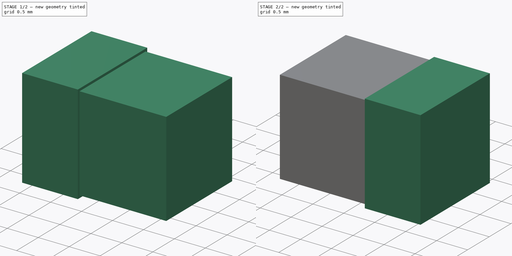
[diagram: build sequence overview — one tinted view per stage of 2, left to right]
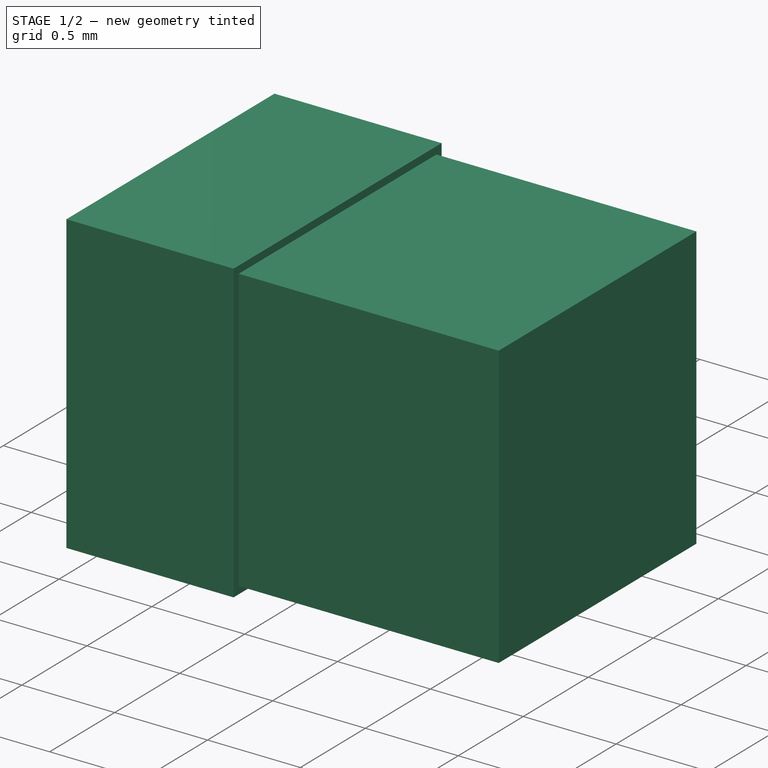
[diagram: stage 1 of 2 — iso view after this stage's code; geometry added in this stage tinted green]
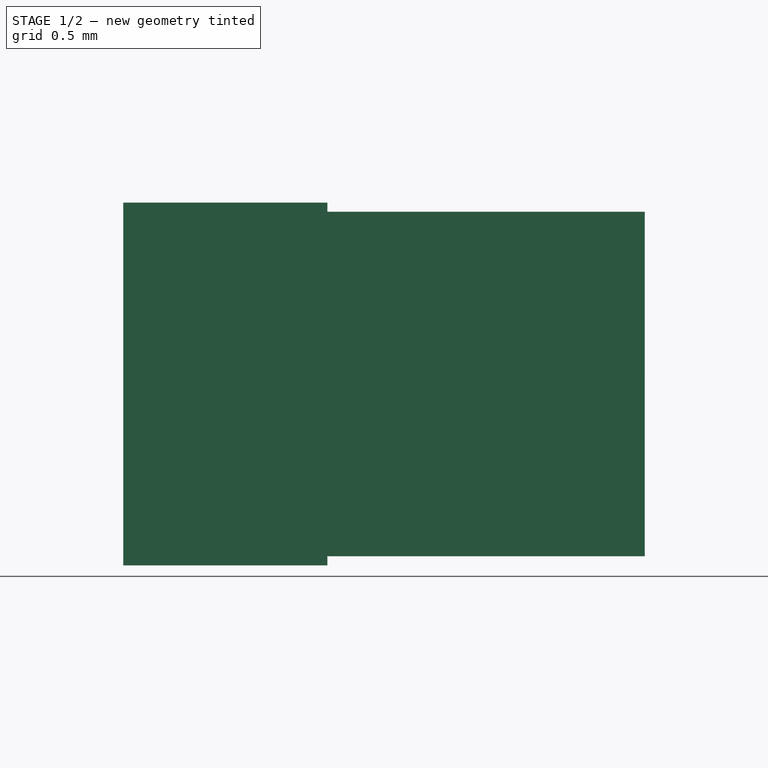
[diagram: stage 1 of 2 — front view after this stage's code; geometry added in this stage tinted green]
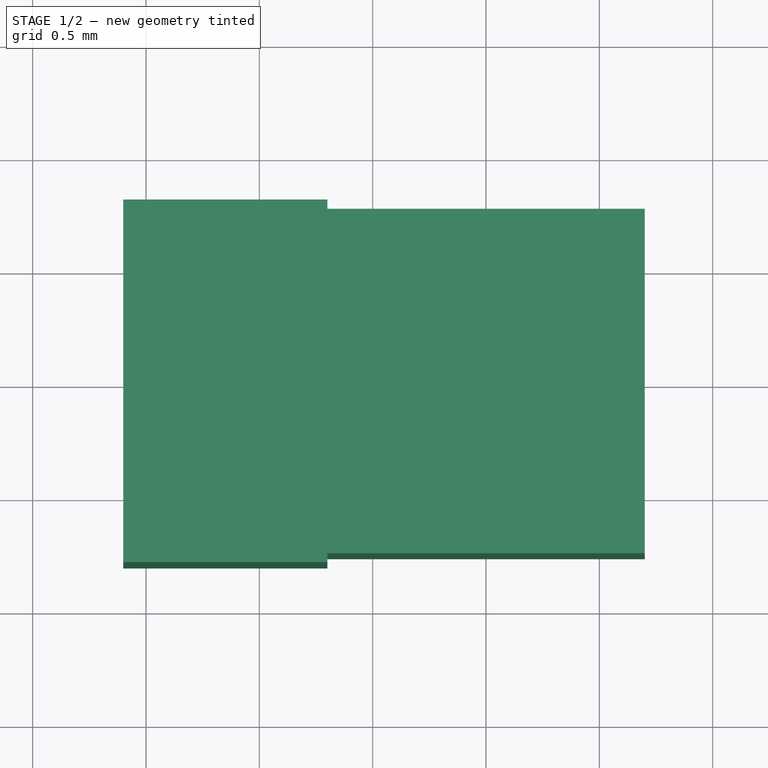
[diagram: stage 1 of 2 — top view after this stage's code; geometry added in this stage tinted green]
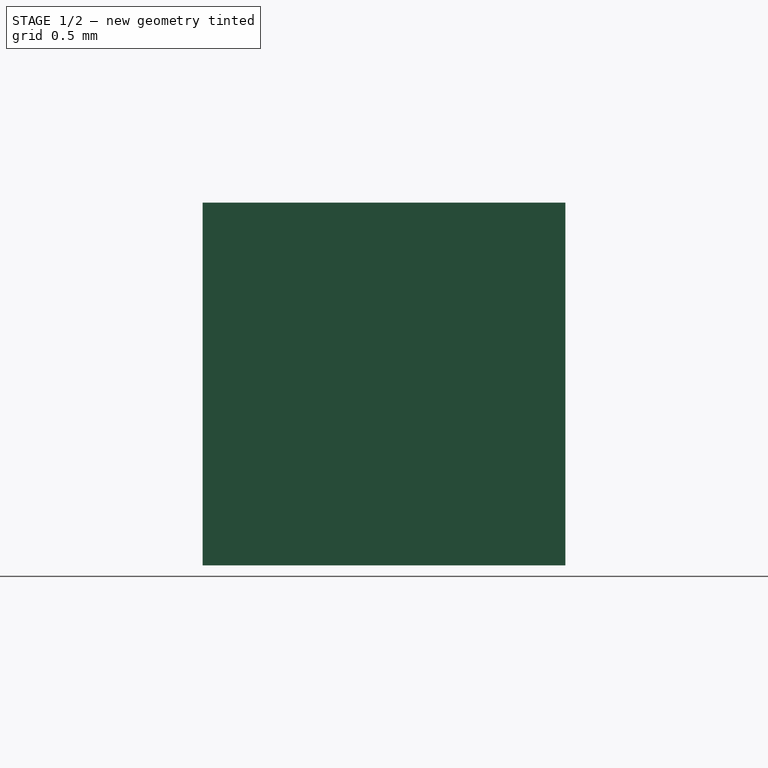
[diagram: stage 1 of 2 — right view after this stage's code; geometry added in this stage tinted green]
FCSTD DOCUMENT  (FreeCAD 0.19R23323 (Git))
Label: C_1206
License: All rights reserved
LicenseURL: http://en.wikipedia.org/wiki/All_rights_reserved
objects: Sketcher::SketchObject×2, PartDesign::Pad×2, PartDesign::Body×2, Spreadsheet::Sheet×1, Part::Mirroring×1
note: 9 computed .brp shape members not serialized (recipe doc carries the construction recipe); baked Part::Feature solids carry a one-line shape summary decoded from their .brp

FEATURE [Sketcher::SketchObject] Sketch
  MapMode = 5
  Placement = pos=(0,0,0) rot=(1,0,0;1.5708rad)
  Support = -> [XZ_Plane]
  expr: Constraints[22] = Spreadsheet.Length
  expr: Constraints[21] = Spreadsheet.TermSpacing
  expr: Constraints[18] = Spreadsheet.Height
  sketch-geometry (8):
    g0: LineSegment StartX=-1.6 StartY=1.6 StartZ=0 EndX=-0.7 EndY=1.6 EndZ=0
    g1: LineSegment StartX=-0.7 StartY=1.6 StartZ=0 EndX=-0.7 EndY=0 EndZ=0
    g2: LineSegment StartX=-0.7 StartY=0 StartZ=0 EndX=-1.6 EndY=0 EndZ=0
    g3: LineSegment StartX=-1.6 StartY=0 StartZ=0 EndX=-1.6 EndY=1.6 EndZ=0
    g4: LineSegment StartX=0.7 StartY=1.6 StartZ=0 EndX=1.6 EndY=1.6 EndZ=0
    g5: LineSegment StartX=1.6 StartY=1.6 StartZ=0 EndX=1.6 EndY=0 EndZ=0
    g6: LineSegment StartX=1.6 StartY=0 StartZ=0 EndX=0.7 EndY=0 EndZ=0
    g7: LineSegment StartX=0.7 StartY=0 StartZ=0 EndX=0.7 EndY=1.6 EndZ=0
  constraints (23):
    c: Coincident(g0,g1)
    c: Coincident(g1,g2)
    c: Coincident(g2,g3)
    c: Coincident(g3,g0)
    c: Horizontal(g0)
    c: Horizontal(g2)
    c: Vertical(g1)
    c: Vertical(g3)
    c: Coincident(g4,g5)
    c: Coincident(g5,g6)
    c: Coincident(g6,g7)
    c: Coincident(g7,g4)
    c: Horizontal(g4)
    c: Horizontal(g6)
    c: Vertical(g5)
    c: Vertical(g7)
    c: Equal(g0,g4)
    c: Equal(g1,g7)
    c: DistanceY(g3,g3) = 1.6
    c: PointOnObject(g1,g-1)
    c: Symmetric(g1,g6,g-1)
    c: DistanceX(g0,g4) = 1.4
    c: DistanceX(g2,g5) = 3.2
FEATURE [Spreadsheet::Sheet] Spreadsheet
  cells = A1=Capacitor Length; B1(Length)=3.2; A2=Capacitor Height (varies depending on capacity, max height here); B2(Height)=1.6; A3=Capacitor Width; B3(Width)=1.6; A4=Terminator Spacing; B4(TermSpacing)=1.4; A5=Terminator Ofset; B5(TermOffset)=0.04
FEATURE [PartDesign::Pad] Pad
  Direction = (1,1,1)
  Length = 1.6
  Length2 = 100
  Midplane = true
  Placement = pos=(0,0,0) rot=(1,0,0;1.5708rad)
  Profile = -> Sketch
  Type = 0
  expr: Length = Spreadsheet.Width
FEATURE [Sketcher::SketchObject] Sketch001
  MapMode = 5
  Placement = pos=(0,0,0) rot=(1,0,0;1.5708rad)
  Support = -> [XZ_Plane001]
  expr: Constraints[10] = Spreadsheet.TermSpacing
  expr: Constraints[9] = Spreadsheet.Height - Spreadsheet.TermOffset * 2
  expr: Constraints[8] = Spreadsheet.TermOffset
  sketch-geometry (5):
    g0: LineSegment StartX=-0.7 StartY=1.56 StartZ=0 EndX=0.7 EndY=1.56 EndZ=0
    g1: LineSegment StartX=0.7 StartY=1.56 StartZ=0 EndX=0.7 EndY=0.04 EndZ=0
    g2: LineSegment StartX=0.7 StartY=0.04 StartZ=0 EndX=-0.7 EndY=0.04 EndZ=0
    g3: LineSegment StartX=-0.7 StartY=0.04 StartZ=0 EndX=-0.7 EndY=1.56 EndZ=0
    g4: LineSegment StartX=0 StartY=0 StartZ=0 EndX=0 EndY=0.04 EndZ=0
  constraints (14):
    c: Coincident(g0,g1)
    c: Coincident(g1,g2)
    c: Coincident(g2,g3)
    c: Coincident(g3,g0)
    c: Horizontal(g0)
    c: Horizontal(g2)
    c: Vertical(g1)
    c: Vertical(g3)
    c: DistanceY(g-1,g2) = 0.04
    c: DistanceY(g1,g0) = 1.52
    c: DistanceX(g0,g0) = 1.4
    c: Coincident(g4,g-1)
    c: Vertical(g4)
    c: Symmetric(g2,g1,g4)
FEATURE [PartDesign::Pad] Pad001
  Direction = (1,1,1)
  Length = 1.52
  Length2 = 100
  Midplane = true
  Placement = pos=(0,0,0) rot=(1,0,0;1.5708rad)
  Profile = -> Sketch001
  Type = 0
  expr: Length = Spreadsheet.Width - Spreadsheet.TermOffset * 2
FEATURE [PartDesign::Body] Body001  label="Capacitor Body"
  Group = -> [Sketch001,Pad001]
  Origin = -> Origin001
  Tip = -> Pad001
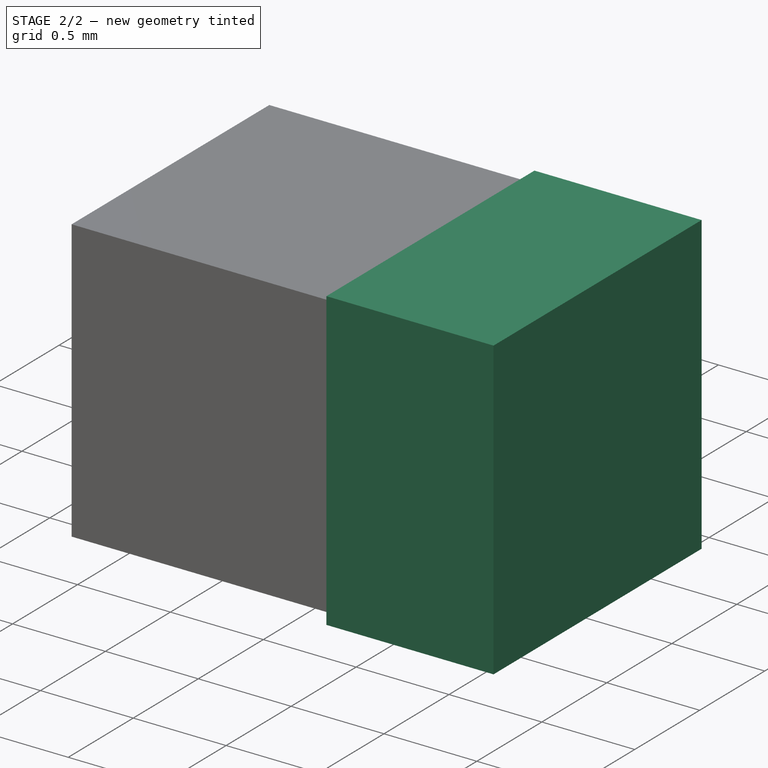
[diagram: stage 2 of 2 — iso view after this stage's code; geometry added in this stage tinted green]
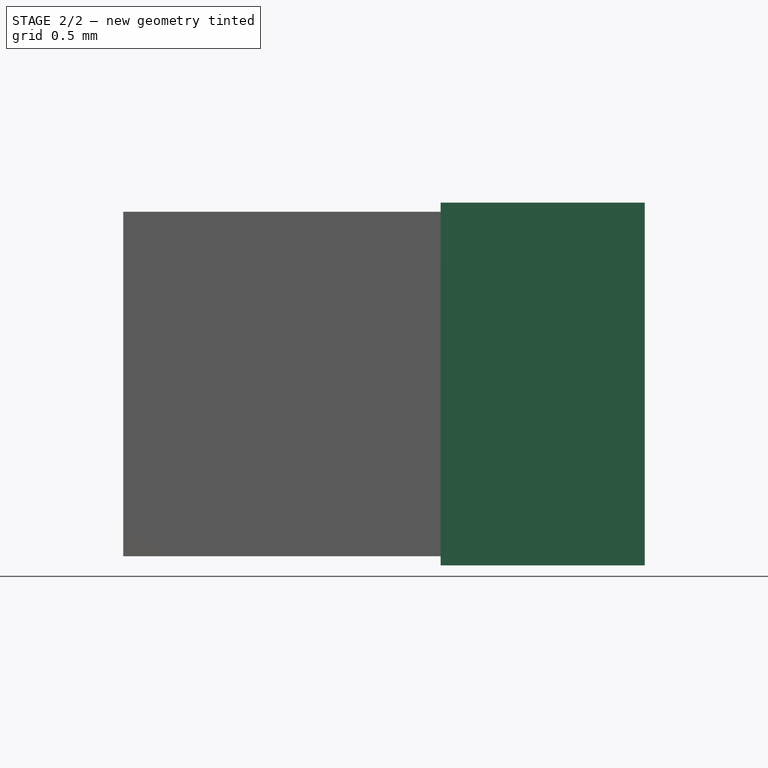
[diagram: stage 2 of 2 — front view after this stage's code; geometry added in this stage tinted green]
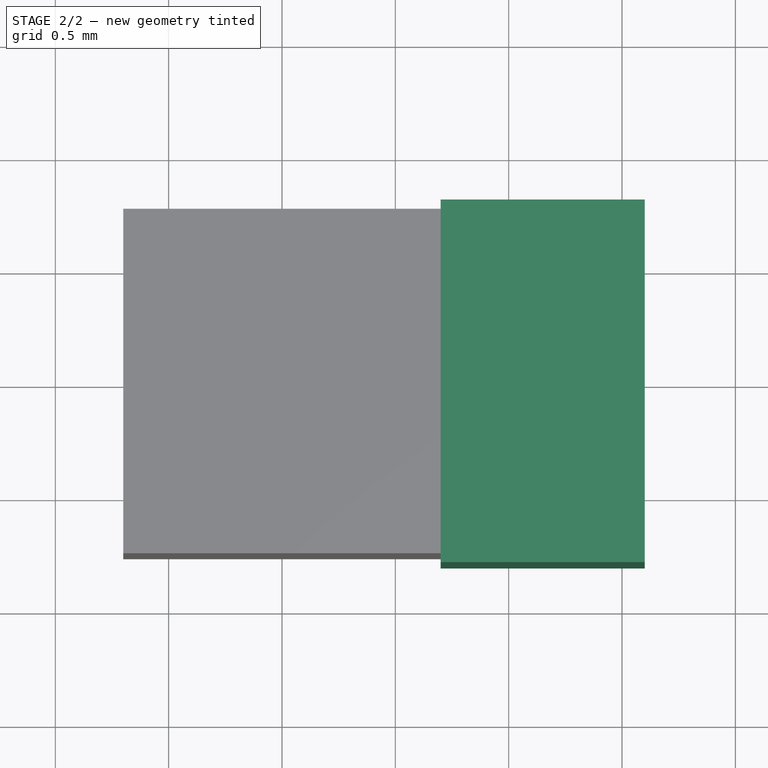
[diagram: stage 2 of 2 — top view after this stage's code; geometry added in this stage tinted green]
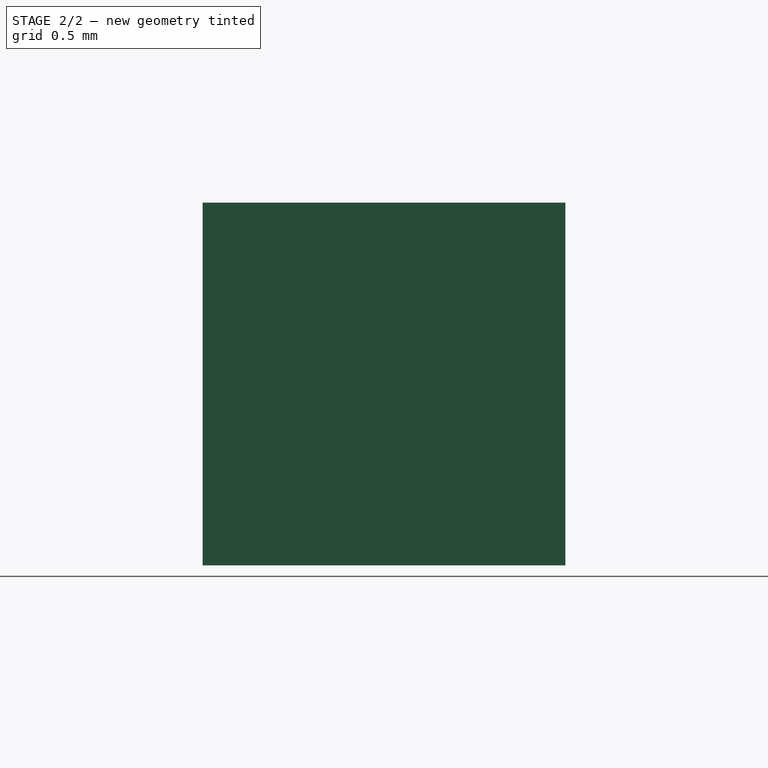
[diagram: stage 2 of 2 — right view after this stage's code; geometry added in this stage tinted green]
FEATURE [PartDesign::Body] Body  label="Terminator Left"
  Group = -> [Sketch,Pad]
  Origin = -> Origin
  Tip = -> Pad
FEATURE [Part::Mirroring] mirror  label="Terminator Right"
  Base = (0,0,0)
  Normal = (1,0,0)
  Source = -> Body
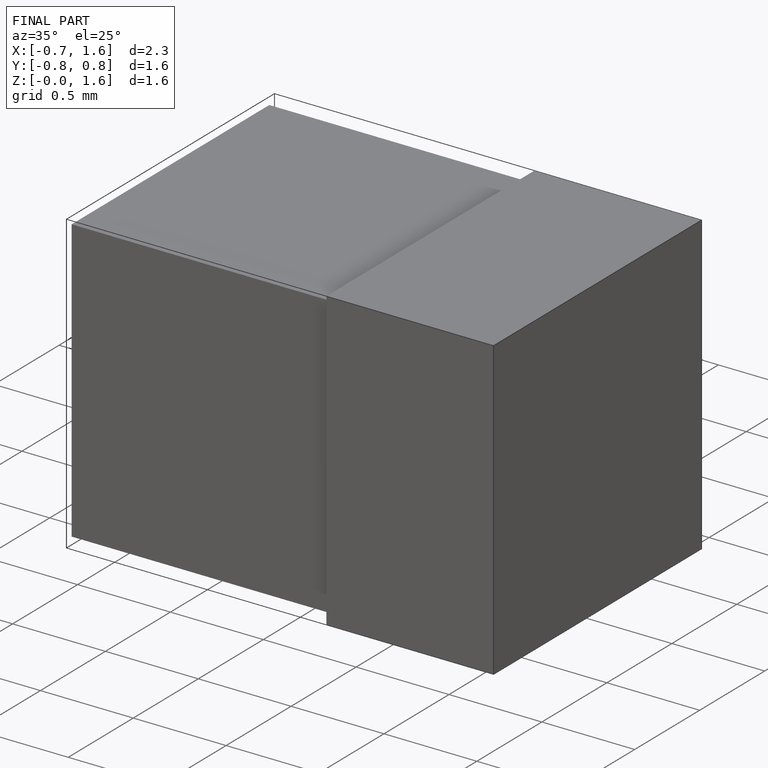
[diagram: finished part — iso view with bounding-box wireframe]
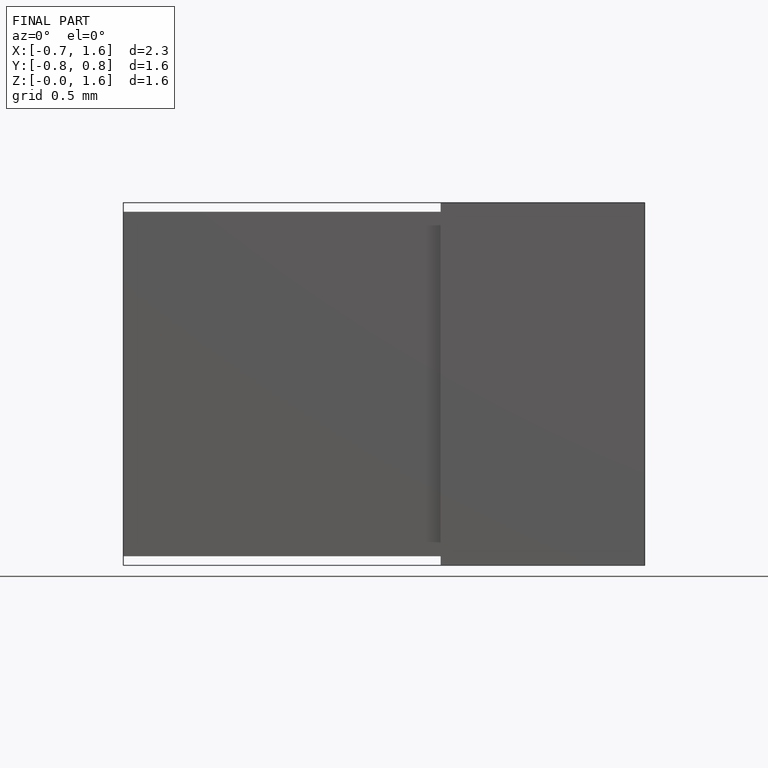
[diagram: finished part — front view with bounding-box wireframe]
